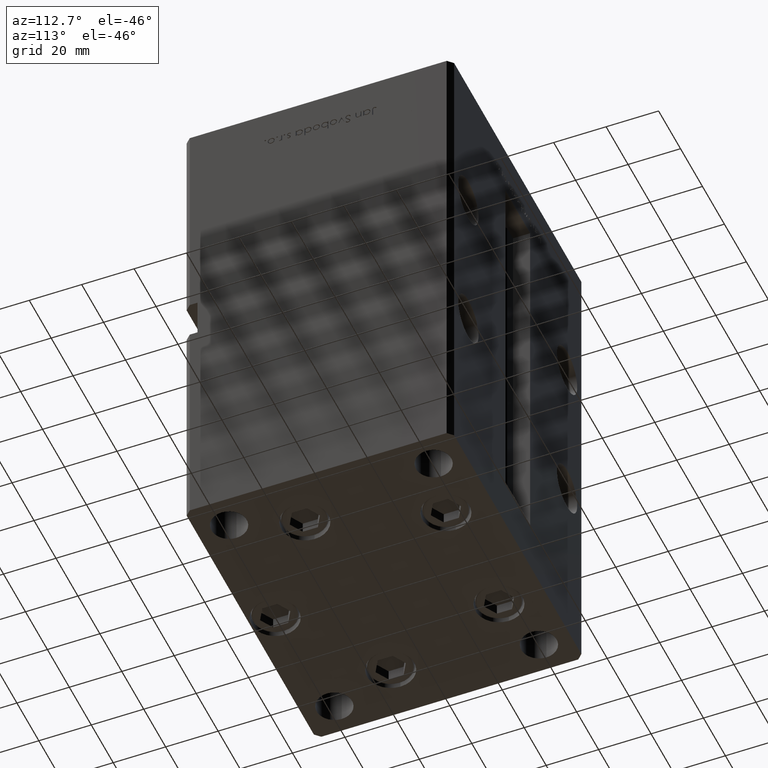
[diagram: clean part render]
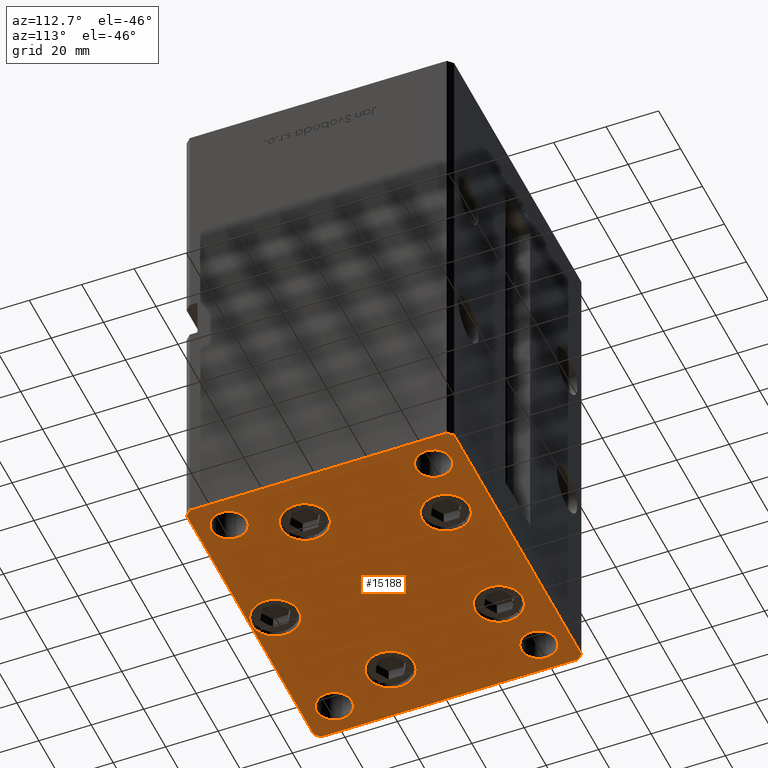
[diagram: same view with one face highlighted and labeled with its STEP entity id]
A machine part, auxiliary view. The second image highlights one B-rep face of the part: STEP entity #15188.
In plain terms, the highlighted planar face has unit normal (0, 0, -1).
Its self-contained STEP definition (entity closure, byte-faithful):
#444 = CARTESIAN_POINT ( 'NONE',  ( -48.00000000000000000, -39.00000000000000000, 0.000000000000000000 ) ) ;
#550 = PLANE ( 'NONE',  #38583 ) ;
#659 = DIRECTION ( 'NONE',  ( 1.000000000000000000, 0.000000000000000000, 0.000000000000000000 ) ) ;
#1093 = FACE_BOUND ( 'NONE', #30444, .T. ) ;
#1514 = ORIENTED_EDGE ( 'NONE', *, *, #35402, .T. ) ;
#1609 = DIRECTION ( 'NONE',  ( -0.000000000000000000, 0.000000000000000000, 1.000000000000000000 ) ) ;
#1628 = DIRECTION ( 'NONE',  ( -0.000000000000000000, 0.000000000000000000, 1.000000000000000000 ) ) ;
#2659 = VERTEX_POINT ( 'NONE', #20066 ) ;
#2884 = CARTESIAN_POINT ( 'NONE',  ( 5.082284216461515748E-15, -41.50000000000000000, 0.000000000000000000 ) ) ;
#2950 = CARTESIAN_POINT ( 'NONE',  ( -33.19288941894912170, 33.71875000000000000, 0.000000000000000000 ) ) ;
#3582 = CIRCLE ( 'NONE', #33580, 6.749999999999999112 ) ;
#3745 = DIRECTION ( 'NONE',  ( 0.000000000000000000, -0.000000000000000000, -1.000000000000000000 ) ) ;
#3863 = LINE ( 'NONE', #48415, #28062 ) ;
#3868 = DIRECTION ( 'NONE',  ( 0.7071067811865474617, -0.7071067811865474617, 0.000000000000000000 ) ) ;
#3997 = VERTEX_POINT ( 'NONE', #6558 ) ;
#4027 = ORIENTED_EDGE ( 'NONE', *, *, #40227, .T. ) ;
#4150 = DIRECTION ( 'NONE',  ( 1.000000000000000000, 1.196361017915039486E-16, 0.000000000000000000 ) ) ;
#4555 = CARTESIAN_POINT ( 'NONE',  ( 54.75000000000000000, 38.99999999999999289, 0.000000000000000000 ) ) ;
#4596 = LINE ( 'NONE', #41093, #28947 ) ;
#4856 = ORIENTED_EDGE ( 'NONE', *, *, #6560, .T. ) ;
#4859 = FACE_BOUND ( 'NONE', #46608, .T. ) ;
#4877 = DIRECTION ( 'NONE',  ( -0.7071067811865451302, -0.7071067811865500152, 0.000000000000000000 ) ) ;
#5910 = FACE_BOUND ( 'NONE', #33329, .T. ) ;
#5927 = DIRECTION ( 'NONE',  ( 1.000000000000000000, 0.000000000000000000, 0.000000000000000000 ) ) ;
#6097 = VERTEX_POINT ( 'NONE', #40241 ) ;
#6105 = CARTESIAN_POINT ( 'NONE',  ( 48.00000000000000000, 38.99999999999999289, 0.000000000000000000 ) ) ;
#6363 = CARTESIAN_POINT ( 'NONE',  ( 58.00000000000000000, -51.00000000000000711, 0.000000000000000000 ) ) ;
#6558 = CARTESIAN_POINT ( 'NONE',  ( -54.75000000000000000, -39.00000000000000000, 0.000000000000000000 ) ) ;
#6560 = EDGE_CURVE ( 'NONE', #8171, #52019, #11399, .T. ) ;
#6767 = CIRCLE ( 'NONE', #51311, 9.000000000000001776 ) ;
#7681 = LINE ( 'NONE', #28602, #30832 ) ;
#7812 = EDGE_CURVE ( 'NONE', #6097, #10314, #30846, .T. ) ;
#7834 = AXIS2_PLACEMENT_3D ( 'NONE', #444, #12264, #33196 ) ;
#8171 = VERTEX_POINT ( 'NONE', #47150 ) ;
#8556 = DIRECTION ( 'NONE',  ( 1.000000000000000000, 0.000000000000000000, 0.000000000000000000 ) ) ;
#8665 = CIRCLE ( 'NONE', #12078, 6.749999999999999112 ) ;
#8737 = CARTESIAN_POINT ( 'NONE',  ( 41.25000000000000000, -38.99999999999999289, 0.000000000000000000 ) ) ;
#8782 = CARTESIAN_POINT ( 'NONE',  ( -57.99999999999999289, 50.99999999999997868, 0.000000000000000000 ) ) ;
#8899 = VERTEX_POINT ( 'NONE', #6363 ) ;
#9029 = CARTESIAN_POINT ( 'NONE',  ( -54.75000000000000000, 39.00000000000000000, 0.000000000000000000 ) ) ;
#9139 = EDGE_CURVE ( 'NONE', #48876, #48792, #49667, .T. ) ;
#9362 = AXIS2_PLACEMENT_3D ( 'NONE', #6105, #46891, #23002 ) ;
#9517 = AXIS2_PLACEMENT_3D ( 'NONE', #32863, #44935, #49236 ) ;
#9639 = EDGE_CURVE ( 'NONE', #13720, #31707, #13646, .T. ) ;
#9738 = EDGE_CURVE ( 'NONE', #36181, #41947, #29093, .T. ) ;
#10246 = AXIS2_PLACEMENT_3D ( 'NONE', #18173, #25689, #48875 ) ;
#10314 = VERTEX_POINT ( 'NONE', #24671 ) ;
#10351 = DIRECTION ( 'NONE',  ( -0.000000000000000000, 0.000000000000000000, 1.000000000000000000 ) ) ;
#10649 = VERTEX_POINT ( 'NONE', #8782 ) ;
#10970 = DIRECTION ( 'NONE',  ( -7.080503983578803823E-16, 1.000000000000000000, 0.000000000000000000 ) ) ;
#11399 = LINE ( 'NONE', #52442, #33307 ) ;
#11769 = ORIENTED_EDGE ( 'NONE', *, *, #38784, .T. ) ;
#11890 = EDGE_LOOP ( 'NONE', ( #39341, #4027 ) ) ;
#12078 = AXIS2_PLACEMENT_3D ( 'NONE', #18817, #1628, #5927 ) ;
#12264 = DIRECTION ( 'NONE',  ( 0.000000000000000000, -0.000000000000000000, -1.000000000000000000 ) ) ;
#12646 = DIRECTION ( 'NONE',  ( 1.000000000000000000, 0.000000000000000000, 0.000000000000000000 ) ) ;
#13000 = EDGE_CURVE ( 'NONE', #15464, #15822, #53057, .T. ) ;
#13113 = DIRECTION ( 'NONE',  ( 0.000000000000000000, -1.000000000000000000, 0.000000000000000000 ) ) ;
#13162 = FACE_BOUND ( 'NONE', #11890, .T. ) ;
#13308 = AXIS2_PLACEMENT_3D ( 'NONE', #24033, #53001, #20270 ) ;
#13334 = ORIENTED_EDGE ( 'NONE', *, *, #52584, .T. ) ;
#13638 = DIRECTION ( 'NONE',  ( 1.000000000000000000, 0.000000000000000000, 0.000000000000000000 ) ) ;
#13646 = CIRCLE ( 'NONE', #10246, 9.000000000000000000 ) ;
#13720 = VERTEX_POINT ( 'NONE', #28929 ) ;
#13763 = CIRCLE ( 'NONE', #24904, 6.749999999999999112 ) ;
#14127 = ORIENTED_EDGE ( 'NONE', *, *, #7812, .T. ) ;
#15020 = CARTESIAN_POINT ( 'NONE',  ( -48.12657522565562829, -13.83333333333333925, 0.000000000000000000 ) ) ;
#15188 = ADVANCED_FACE ( 'NONE', ( #37848, #26285, #5910, #17192, #22276, #1093, #4859, #45650, #25762, #13162 ), #550, .T. ) ;
#15237 = DIRECTION ( 'NONE',  ( 0.000000000000000000, -0.000000000000000000, -1.000000000000000000 ) ) ;
#15464 = VERTEX_POINT ( 'NONE', #32976 ) ;
#15822 = VERTEX_POINT ( 'NONE', #43581 ) ;
#16138 = CARTESIAN_POINT ( 'NONE',  ( 48.00000000000000000, -38.99999999999999289, 0.000000000000000000 ) ) ;
#16917 = DIRECTION ( 'NONE',  ( -0.7071067811865487940, 0.7071067811865463515, 0.000000000000000000 ) ) ;
#17012 = CIRCLE ( 'NONE', #35088, 9.000000000000000000 ) ;
#17192 = FACE_BOUND ( 'NONE', #28005, .T. ) ;
#17366 = ORIENTED_EDGE ( 'NONE', *, *, #47269, .T. ) ;
#17452 = DIRECTION ( 'NONE',  ( 1.000000000000000000, 0.000000000000000000, 0.000000000000000000 ) ) ;
#17640 = DIRECTION ( 'NONE',  ( 0.000000000000000000, -0.000000000000000000, -1.000000000000000000 ) ) ;
#17808 = CARTESIAN_POINT ( 'NONE',  ( 48.00000000000000000, -38.99999999999999289, 0.000000000000000000 ) ) ;
#17812 = EDGE_LOOP ( 'NONE', ( #28118, #23479 ) ) ;
#18129 = CARTESIAN_POINT ( 'NONE',  ( -30.12657522565562829, -13.83333333333333748, 0.000000000000000000 ) ) ;
#18173 = CARTESIAN_POINT ( 'NONE',  ( 5.082284216461515748E-15, -41.50000000000000000, 0.000000000000000000 ) ) ;
#18379 = AXIS2_PLACEMENT_3D ( 'NONE', #2884, #27032, #39387 ) ;
#18817 = CARTESIAN_POINT ( 'NONE',  ( 48.00000000000000000, 38.99999999999999289, 0.000000000000000000 ) ) ;
#18995 = CARTESIAN_POINT ( 'NONE',  ( -41.25000000000000000, -39.00000000000000000, 0.000000000000000000 ) ) ;
#20066 = CARTESIAN_POINT ( 'NONE',  ( 54.75000000000000000, -38.99999999999999289, 0.000000000000000000 ) ) ;
#20270 = DIRECTION ( 'NONE',  ( 1.000000000000000000, 0.000000000000000000, 0.000000000000000000 ) ) ;
#20362 = DIRECTION ( 'NONE',  ( 1.000000000000000000, 0.000000000000000000, 0.000000000000000000 ) ) ;
#20399 = CIRCLE ( 'NONE', #50392, 9.000000000000001776 ) ;
#20628 = CIRCLE ( 'NONE', #31786, 6.749999999999999112 ) ;
#20796 = DIRECTION ( 'NONE',  ( 0.000000000000000000, -0.000000000000000000, -1.000000000000000000 ) ) ;
#21313 = AXIS2_PLACEMENT_3D ( 'NONE', #36480, #3745, #36744 ) ;
#21341 = EDGE_CURVE ( 'NONE', #23457, #42001, #33894, .T. ) ;
#21472 = VECTOR ( 'NONE', #13113, 1000.000000000000000 ) ;
#21791 = DIRECTION ( 'NONE',  ( 0.7071067811865474617, 0.7071067811865474617, 0.000000000000000000 ) ) ;
#22189 = CIRCLE ( 'NONE', #21313, 9.000000000000001776 ) ;
#22276 = FACE_BOUND ( 'NONE', #52652, .T. ) ;
#23002 = DIRECTION ( 'NONE',  ( 1.000000000000000000, 0.000000000000000000, 0.000000000000000000 ) ) ;
#23041 = VECTOR ( 'NONE', #10970, 1000.000000000000000 ) ;
#23078 = CARTESIAN_POINT ( 'NONE',  ( 41.25000000000000000, 38.99999999999999289, 0.000000000000000000 ) ) ;
#23267 = CIRCLE ( 'NONE', #47297, 6.749999999999999112 ) ;
#23457 = VERTEX_POINT ( 'NONE', #31598 ) ;
#23479 = ORIENTED_EDGE ( 'NONE', *, *, #40461, .F. ) ;
#23994 = CIRCLE ( 'NONE', #35997, 6.749999999999999112 ) ;
#24033 = CARTESIAN_POINT ( 'NONE',  ( 39.12657522565562829, -13.83333333333332860, 0.000000000000000000 ) ) ;
#24147 = VERTEX_POINT ( 'NONE', #18995 ) ;
#24628 = CARTESIAN_POINT ( 'NONE',  ( -60.00000000000000000, 48.99999999999995737, 0.000000000000000000 ) ) ;
#24671 = CARTESIAN_POINT ( 'NONE',  ( 59.99999999999994316, 49.00000000000000000, 0.000000000000000000 ) ) ;
#24904 = AXIS2_PLACEMENT_3D ( 'NONE', #31023, #10351, #26428 ) ;
#25689 = DIRECTION ( 'NONE',  ( 0.000000000000000000, -0.000000000000000000, -1.000000000000000000 ) ) ;
#25762 = FACE_OUTER_BOUND ( 'NONE', #37759, .T. ) ;
#26092 = CIRCLE ( 'NONE', #18379, 9.000000000000000000 ) ;
#26135 = CARTESIAN_POINT ( 'NONE',  ( 24.19288941894911460, 33.71875000000000711, 0.000000000000000000 ) ) ;
#26285 = FACE_BOUND ( 'NONE', #28540, .T. ) ;
#26428 = DIRECTION ( 'NONE',  ( 1.000000000000000000, 0.000000000000000000, 0.000000000000000000 ) ) ;
#26730 = VERTEX_POINT ( 'NONE', #8737 ) ;
#26750 = ORIENTED_EDGE ( 'NONE', *, *, #50096, .T. ) ;
#27032 = DIRECTION ( 'NONE',  ( 0.000000000000000000, -0.000000000000000000, -1.000000000000000000 ) ) ;
#27323 = DIRECTION ( 'NONE',  ( 1.000000000000000000, 0.000000000000000000, 0.000000000000000000 ) ) ;
#27661 = CARTESIAN_POINT ( 'NONE',  ( 57.99999999999993605, 51.00000000000000711, 0.000000000000000000 ) ) ;
#27757 = EDGE_CURVE ( 'NONE', #34799, #10649, #3863, .T. ) ;
#28005 = EDGE_LOOP ( 'NONE', ( #36963, #13334 ) ) ;
#28062 = VECTOR ( 'NONE', #31802, 1000.000000000000000 ) ;
#28117 = EDGE_CURVE ( 'NONE', #10314, #34799, #4596, .T. ) ;
#28118 = ORIENTED_EDGE ( 'NONE', *, *, #43881, .F. ) ;
#28147 = VERTEX_POINT ( 'NONE', #45909 ) ;
#28193 = VERTEX_POINT ( 'NONE', #2950 ) ;
#28540 = EDGE_LOOP ( 'NONE', ( #31660, #1514 ) ) ;
#28602 = CARTESIAN_POINT ( 'NONE',  ( 58.00000000000000000, -51.00000000000000711, 0.000000000000000000 ) ) ;
#28929 = CARTESIAN_POINT ( 'NONE',  ( -8.999999999999994671, -41.50000000000000000, 0.000000000000000000 ) ) ;
#28947 = VECTOR ( 'NONE', #16917, 1000.000000000000000 ) ;
#29093 = CIRCLE ( 'NONE', #9362, 6.749999999999999112 ) ;
#29249 = ORIENTED_EDGE ( 'NONE', *, *, #43931, .T. ) ;
#29444 = ORIENTED_EDGE ( 'NONE', *, *, #21341, .T. ) ;
#29939 = EDGE_CURVE ( 'NONE', #48792, #48876, #20399, .T. ) ;
#30265 = DIRECTION ( 'NONE',  ( 1.000000000000000000, 0.000000000000000000, 0.000000000000000000 ) ) ;
#30444 = EDGE_LOOP ( 'NONE', ( #36706, #44630 ) ) ;
#30476 = DIRECTION ( 'NONE',  ( 0.000000000000000000, -0.000000000000000000, -1.000000000000000000 ) ) ;
#30832 = VECTOR ( 'NONE', #21791, 1000.000000000000114 ) ;
#30846 = LINE ( 'NONE', #51760, #23041 ) ;
#31023 = CARTESIAN_POINT ( 'NONE',  ( -48.00000000000000000, 39.00000000000000000, 0.000000000000000000 ) ) ;
#31060 = VECTOR ( 'NONE', #4877, 1000.000000000000114 ) ;
#31598 = CARTESIAN_POINT ( 'NONE',  ( 48.12657522565562829, -13.83333333333332682, 0.000000000000000000 ) ) ;
#31660 = ORIENTED_EDGE ( 'NONE', *, *, #13000, .T. ) ;
#31707 = VERTEX_POINT ( 'NONE', #34080 ) ;
#31725 = VERTEX_POINT ( 'NONE', #33015 ) ;
#31786 = AXIS2_PLACEMENT_3D ( 'NONE', #51319, #53093, #20362 ) ;
#31802 = DIRECTION ( 'NONE',  ( -1.000000000000000000, -2.392722035830079958E-16, 0.000000000000000000 ) ) ;
#32863 = CARTESIAN_POINT ( 'NONE',  ( -24.19288941894912170, 33.71875000000000000, 0.000000000000000000 ) ) ;
#32976 = CARTESIAN_POINT ( 'NONE',  ( 15.19288941894911105, 33.71875000000000711, 0.000000000000000000 ) ) ;
#33015 = CARTESIAN_POINT ( 'NONE',  ( -15.19288941894912170, 33.71875000000000000, 0.000000000000000000 ) ) ;
#33196 = DIRECTION ( 'NONE',  ( 1.000000000000000000, 0.000000000000000000, 0.000000000000000000 ) ) ;
#33307 = VECTOR ( 'NONE', #3868, 1000.000000000000114 ) ;
#33329 = EDGE_LOOP ( 'NONE', ( #42370, #29444 ) ) ;
#33521 = CARTESIAN_POINT ( 'NONE',  ( -24.19288941894912170, 33.71875000000000000, 0.000000000000000000 ) ) ;
#33580 = AXIS2_PLACEMENT_3D ( 'NONE', #52642, #44860, #12646 ) ;
#33894 = CIRCLE ( 'NONE', #13308, 9.000000000000001776 ) ;
#34080 = CARTESIAN_POINT ( 'NONE',  ( 9.000000000000005329, -41.50000000000000000, 0.000000000000000000 ) ) ;
#34799 = VERTEX_POINT ( 'NONE', #27661 ) ;
#35088 = AXIS2_PLACEMENT_3D ( 'NONE', #33521, #30476, #8556 ) ;
#35291 = DIRECTION ( 'NONE',  ( 0.000000000000000000, -0.000000000000000000, -1.000000000000000000 ) ) ;
#35400 = CARTESIAN_POINT ( 'NONE',  ( -39.12657522565562829, -13.83333333333333925, 0.000000000000000000 ) ) ;
#35402 = EDGE_CURVE ( 'NONE', #15822, #15464, #6767, .T. ) ;
#35997 = AXIS2_PLACEMENT_3D ( 'NONE', #17808, #20796, #659 ) ;
#36181 = VERTEX_POINT ( 'NONE', #23078 ) ;
#36284 = EDGE_CURVE ( 'NONE', #42001, #23457, #22189, .T. ) ;
#36412 = EDGE_CURVE ( 'NONE', #28193, #31725, #17012, .T. ) ;
#36480 = CARTESIAN_POINT ( 'NONE',  ( 39.12657522565562829, -13.83333333333332860, 0.000000000000000000 ) ) ;
#36706 = ORIENTED_EDGE ( 'NONE', *, *, #41804, .F. ) ;
#36744 = DIRECTION ( 'NONE',  ( 1.000000000000000000, 0.000000000000000000, 0.000000000000000000 ) ) ;
#36795 = ORIENTED_EDGE ( 'NONE', *, *, #41184, .T. ) ;
#36963 = ORIENTED_EDGE ( 'NONE', *, *, #9639, .T. ) ;
#37093 = VECTOR ( 'NONE', #4150, 1000.000000000000000 ) ;
#37674 = EDGE_CURVE ( 'NONE', #26730, #2659, #23994, .T. ) ;
#37759 = EDGE_LOOP ( 'NONE', ( #4856, #17366, #11769, #14127, #39892, #44345, #26750, #36795 ) ) ;
#37848 = FACE_BOUND ( 'NONE', #49090, .T. ) ;
#38493 = DIRECTION ( 'NONE',  ( 0.000000000000000000, -0.000000000000000000, -1.000000000000000000 ) ) ;
#38583 = AXIS2_PLACEMENT_3D ( 'NONE', #42144, #1609, #17452 ) ;
#38663 = CIRCLE ( 'NONE', #7834, 6.749999999999999112 ) ;
#38784 = EDGE_CURVE ( 'NONE', #8899, #6097, #7681, .T. ) ;
#39341 = ORIENTED_EDGE ( 'NONE', *, *, #42216, .T. ) ;
#39356 = VERTEX_POINT ( 'NONE', #24628 ) ;
#39365 = AXIS2_PLACEMENT_3D ( 'NONE', #26135, #38493, #46024 ) ;
#39387 = DIRECTION ( 'NONE',  ( 1.000000000000000000, 0.000000000000000000, 0.000000000000000000 ) ) ;
#39892 = ORIENTED_EDGE ( 'NONE', *, *, #28117, .T. ) ;
#40227 = EDGE_CURVE ( 'NONE', #3997, #24147, #20628, .T. ) ;
#40241 = CARTESIAN_POINT ( 'NONE',  ( 60.00000000000001421, -48.99999999999999289, 0.000000000000000000 ) ) ;
#40461 = EDGE_CURVE ( 'NONE', #41409, #28147, #13763, .T. ) ;
#40654 = LINE ( 'NONE', #48703, #37093 ) ;
#40941 = ORIENTED_EDGE ( 'NONE', *, *, #29939, .T. ) ;
#41093 = CARTESIAN_POINT ( 'NONE',  ( 59.99999999999994316, 49.00000000000000000, 0.000000000000000000 ) ) ;
#41184 = EDGE_CURVE ( 'NONE', #39356, #8171, #46116, .T. ) ;
#41409 = VERTEX_POINT ( 'NONE', #9029 ) ;
#41804 = EDGE_CURVE ( 'NONE', #41947, #36181, #8665, .T. ) ;
#41947 = VERTEX_POINT ( 'NONE', #4555 ) ;
#42001 = VERTEX_POINT ( 'NONE', #43424 ) ;
#42144 = CARTESIAN_POINT ( 'NONE',  ( 0.000000000000000000, 0.000000000000000000, 0.000000000000000000 ) ) ;
#42163 = CARTESIAN_POINT ( 'NONE',  ( -57.99999999999999289, 50.99999999999997868, 0.000000000000000000 ) ) ;
#42216 = EDGE_CURVE ( 'NONE', #24147, #3997, #38663, .T. ) ;
#42370 = ORIENTED_EDGE ( 'NONE', *, *, #36284, .T. ) ;
#42453 = CARTESIAN_POINT ( 'NONE',  ( -57.99999999999997868, -51.00000000000001421, 0.000000000000000000 ) ) ;
#42463 = EDGE_CURVE ( 'NONE', #31725, #28193, #51511, .T. ) ;
#42721 = ORIENTED_EDGE ( 'NONE', *, *, #42463, .T. ) ;
#43424 = CARTESIAN_POINT ( 'NONE',  ( 30.12657522565562829, -13.83333333333332860, 0.000000000000000000 ) ) ;
#43581 = CARTESIAN_POINT ( 'NONE',  ( 33.19288941894911460, 33.71875000000000711, 0.000000000000000000 ) ) ;
#43881 = EDGE_CURVE ( 'NONE', #28147, #41409, #3582, .T. ) ;
#43931 = EDGE_CURVE ( 'NONE', #2659, #26730, #23267, .T. ) ;
#44345 = ORIENTED_EDGE ( 'NONE', *, *, #27757, .T. ) ;
#44630 = ORIENTED_EDGE ( 'NONE', *, *, #9738, .F. ) ;
#44860 = DIRECTION ( 'NONE',  ( -0.000000000000000000, 0.000000000000000000, 1.000000000000000000 ) ) ;
#44935 = DIRECTION ( 'NONE',  ( 0.000000000000000000, -0.000000000000000000, -1.000000000000000000 ) ) ;
#45056 = CARTESIAN_POINT ( 'NONE',  ( -60.00000000000000000, 48.99999999999995737, 0.000000000000000000 ) ) ;
#45650 = FACE_BOUND ( 'NONE', #17812, .T. ) ;
#45909 = CARTESIAN_POINT ( 'NONE',  ( -41.25000000000000000, 39.00000000000000000, 0.000000000000000000 ) ) ;
#46024 = DIRECTION ( 'NONE',  ( 1.000000000000000000, 0.000000000000000000, 0.000000000000000000 ) ) ;
#46101 = CARTESIAN_POINT ( 'NONE',  ( 24.19288941894911460, 33.71875000000000711, 0.000000000000000000 ) ) ;
#46116 = LINE ( 'NONE', #45056, #21472 ) ;
#46208 = AXIS2_PLACEMENT_3D ( 'NONE', #51099, #35291, #46556 ) ;
#46556 = DIRECTION ( 'NONE',  ( 1.000000000000000000, 0.000000000000000000, 0.000000000000000000 ) ) ;
#46608 = EDGE_LOOP ( 'NONE', ( #29249, #51439 ) ) ;
#46891 = DIRECTION ( 'NONE',  ( -0.000000000000000000, 0.000000000000000000, 1.000000000000000000 ) ) ;
#47150 = CARTESIAN_POINT ( 'NONE',  ( -60.00000000000000000, -49.00000000000000000, 0.000000000000000000 ) ) ;
#47269 = EDGE_CURVE ( 'NONE', #52019, #8899, #40654, .T. ) ;
#47297 = AXIS2_PLACEMENT_3D ( 'NONE', #16138, #49418, #13638 ) ;
#48415 = CARTESIAN_POINT ( 'NONE',  ( 57.99999999999993605, 51.00000000000000711, 0.000000000000000000 ) ) ;
#48454 = ORIENTED_EDGE ( 'NONE', *, *, #9139, .T. ) ;
#48703 = CARTESIAN_POINT ( 'NONE',  ( -57.99999999999997868, -51.00000000000001421, 0.000000000000000000 ) ) ;
#48792 = VERTEX_POINT ( 'NONE', #15020 ) ;
#48875 = DIRECTION ( 'NONE',  ( 1.000000000000000000, 0.000000000000000000, 0.000000000000000000 ) ) ;
#48876 = VERTEX_POINT ( 'NONE', #18129 ) ;
#49090 = EDGE_LOOP ( 'NONE', ( #50811, #42721 ) ) ;
#49236 = DIRECTION ( 'NONE',  ( 1.000000000000000000, 0.000000000000000000, 0.000000000000000000 ) ) ;
#49418 = DIRECTION ( 'NONE',  ( 0.000000000000000000, -0.000000000000000000, -1.000000000000000000 ) ) ;
#49667 = CIRCLE ( 'NONE', #46208, 9.000000000000001776 ) ;
#49960 = LINE ( 'NONE', #42163, #31060 ) ;
#50096 = EDGE_CURVE ( 'NONE', #10649, #39356, #49960, .T. ) ;
#50392 = AXIS2_PLACEMENT_3D ( 'NONE', #35400, #15237, #27323 ) ;
#50811 = ORIENTED_EDGE ( 'NONE', *, *, #36412, .T. ) ;
#51099 = CARTESIAN_POINT ( 'NONE',  ( -39.12657522565562829, -13.83333333333333925, 0.000000000000000000 ) ) ;
#51311 = AXIS2_PLACEMENT_3D ( 'NONE', #46101, #17640, #30265 ) ;
#51319 = CARTESIAN_POINT ( 'NONE',  ( -48.00000000000000000, -39.00000000000000000, 0.000000000000000000 ) ) ;
#51439 = ORIENTED_EDGE ( 'NONE', *, *, #37674, .T. ) ;
#51511 = CIRCLE ( 'NONE', #9517, 9.000000000000000000 ) ;
#51760 = CARTESIAN_POINT ( 'NONE',  ( 60.00000000000001421, -48.99999999999999289, 0.000000000000000000 ) ) ;
#52019 = VERTEX_POINT ( 'NONE', #42453 ) ;
#52442 = CARTESIAN_POINT ( 'NONE',  ( -60.00000000000000000, -49.00000000000000000, 0.000000000000000000 ) ) ;
#52584 = EDGE_CURVE ( 'NONE', #31707, #13720, #26092, .T. ) ;
#52642 = CARTESIAN_POINT ( 'NONE',  ( -48.00000000000000000, 39.00000000000000000, 0.000000000000000000 ) ) ;
#52652 = EDGE_LOOP ( 'NONE', ( #40941, #48454 ) ) ;
#53001 = DIRECTION ( 'NONE',  ( 0.000000000000000000, -0.000000000000000000, -1.000000000000000000 ) ) ;
#53057 = CIRCLE ( 'NONE', #39365, 9.000000000000001776 ) ;
#53093 = DIRECTION ( 'NONE',  ( 0.000000000000000000, -0.000000000000000000, -1.000000000000000000 ) ) ;